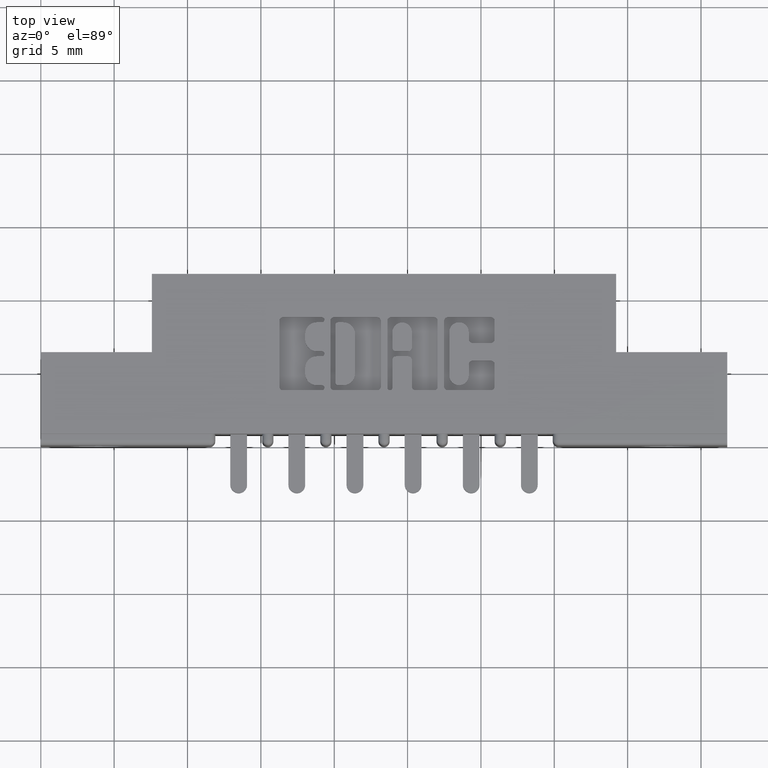
[diagram: clean part render]
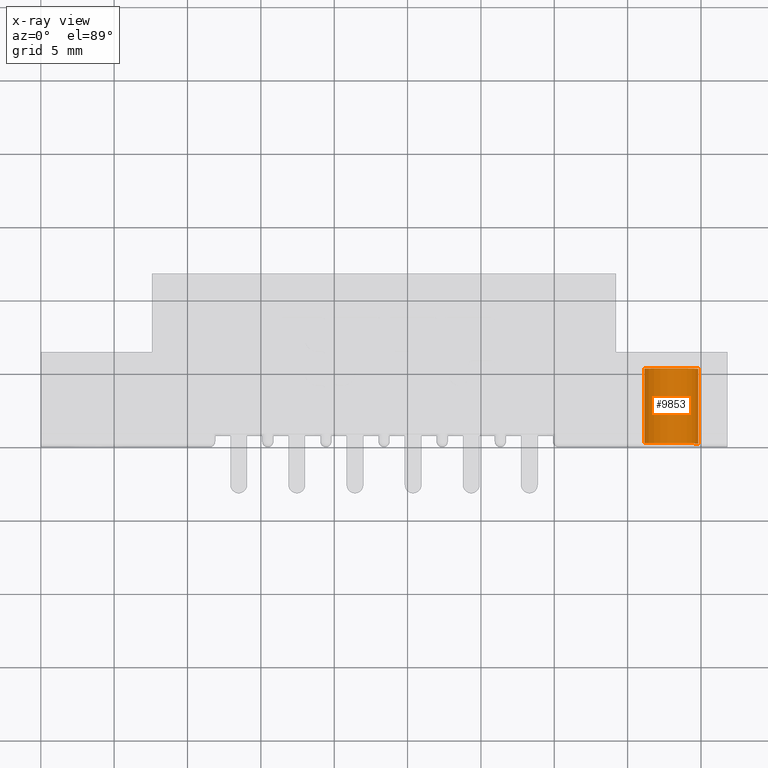
[diagram: x-ray — body ghosted, one internal face saturated and labeled with its STEP entity id]
A machine part, top view, then the same camera in x-ray: the body is ghosted and one INTERNAL B-rep face — a face not visible from any outside direction — is saturated and labeled: STEP entity #9853.
In plain terms, the highlighted cylindrical surface (edge-blend (fillet) strip) has radius 1.9685 mm, axis along (-0, 1, -0).
Its self-contained STEP definition (entity closure, byte-faithful):
#274 = CARTESIAN_POINT ( 'NONE',  ( 0.0000000000000000000, 0.04000000000000000100, -0.07749999999999999900 ) ) ;
#401 = EDGE_CURVE ( 'NONE', #1483, #9272, #10700, .T. ) ;
#551 = DIRECTION ( 'NONE',  ( 0.0000000000000000000, 0.0000000000000000000, 1.000000000000000000 ) ) ;
#636 = EDGE_CURVE ( 'NONE', #7922, #3532, #5199, .T. ) ;
#873 = DIRECTION ( 'NONE',  ( -0.0000000000000000000, -1.000000000000000000, -0.0000000000000000000 ) ) ;
#1242 = ORIENTED_EDGE ( 'NONE', *, *, #636, .F. ) ;
#1325 = LINE ( 'NONE', #5835, #7783 ) ;
#1483 = VERTEX_POINT ( 'NONE', #5923 ) ;
#1547 = DIRECTION ( 'NONE',  ( 0.0000000000000000000, 0.0000000000000000000, 1.000000000000000000 ) ) ;
#1551 = DIRECTION ( 'NONE',  ( 0.0000000000000000000, 1.000000000000000000, 0.0000000000000000000 ) ) ;
#2171 = DIRECTION ( 'NONE',  ( -0.0000000000000000000, -1.000000000000000000, -0.0000000000000000000 ) ) ;
#2971 = DIRECTION ( 'NONE',  ( -0.0000000000000000000, -1.000000000000000000, -0.0000000000000000000 ) ) ;
#3318 = DIRECTION ( 'NONE',  ( 0.0000000000000000000, 1.000000000000000000, 0.0000000000000000000 ) ) ;
#3532 = VERTEX_POINT ( 'NONE', #4382 ) ;
#3589 = DIRECTION ( 'NONE',  ( 0.0000000000000000000, 0.0000000000000000000, -1.000000000000000000 ) ) ;
#4200 = CYLINDRICAL_SURFACE ( 'NONE', #10106, 0.07749999999999999900 ) ;
#4382 = CARTESIAN_POINT ( 'NONE',  ( 0.0000000000000000000, 0.2400000000000000500, -0.07749999999999999900 ) ) ;
#4801 = AXIS2_PLACEMENT_3D ( 'NONE', #8900, #3318, #1547 ) ;
#5084 = CARTESIAN_POINT ( 'NONE',  ( 9.491012693391986400E-018, 0.2400000000000000500, 0.07749999999999999900 ) ) ;
#5199 = CIRCLE ( 'NONE', #11447, 0.07749999999999999900 ) ;
#5387 = CARTESIAN_POINT ( 'NONE',  ( 0.0000000000000000000, 0.2400000000000000500, 0.0000000000000000000 ) ) ;
#5642 = CARTESIAN_POINT ( 'NONE',  ( 0.0000000000000000000, 0.2400000000000000500, -0.07749999999999999900 ) ) ;
#5835 = CARTESIAN_POINT ( 'NONE',  ( 9.491012693391986400E-018, 0.2400000000000000500, 0.07749999999999999900 ) ) ;
#5923 = CARTESIAN_POINT ( 'NONE',  ( 9.491012693391986400E-018, 0.04000000000000000100, 0.07749999999999999900 ) ) ;
#6115 = EDGE_CURVE ( 'NONE', #3532, #9272, #10413, .T. ) ;
#6640 = EDGE_CURVE ( 'NONE', #7922, #1483, #1325, .T. ) ;
#7783 = VECTOR ( 'NONE', #2971, 39.37007874015748100 ) ;
#7800 = ORIENTED_EDGE ( 'NONE', *, *, #401, .T. ) ;
#7922 = VERTEX_POINT ( 'NONE', #5084 ) ;
#7947 = VECTOR ( 'NONE', #2171, 39.37007874015748100 ) ;
#8208 = FACE_OUTER_BOUND ( 'NONE', #8498, .T. ) ;
#8498 = EDGE_LOOP ( 'NONE', ( #1242, #9217, #7800, #10177 ) ) ;
#8900 = CARTESIAN_POINT ( 'NONE',  ( 0.0000000000000000000, 0.04000000000000000100, 0.0000000000000000000 ) ) ;
#8904 = CARTESIAN_POINT ( 'NONE',  ( 0.0000000000000000000, 0.2400000000000000500, 0.0000000000000000000 ) ) ;
#9217 = ORIENTED_EDGE ( 'NONE', *, *, #6640, .T. ) ;
#9272 = VERTEX_POINT ( 'NONE', #274 ) ;
#9853 = ADVANCED_FACE ( 'NONE', ( #8208 ), #4200, .T. ) ;
#10106 = AXIS2_PLACEMENT_3D ( 'NONE', #5387, #873, #3589 ) ;
#10177 = ORIENTED_EDGE ( 'NONE', *, *, #6115, .F. ) ;
#10413 = LINE ( 'NONE', #5642, #7947 ) ;
#10700 = CIRCLE ( 'NONE', #4801, 0.07749999999999999900 ) ;
#11447 = AXIS2_PLACEMENT_3D ( 'NONE', #8904, #1551, #551 ) ;